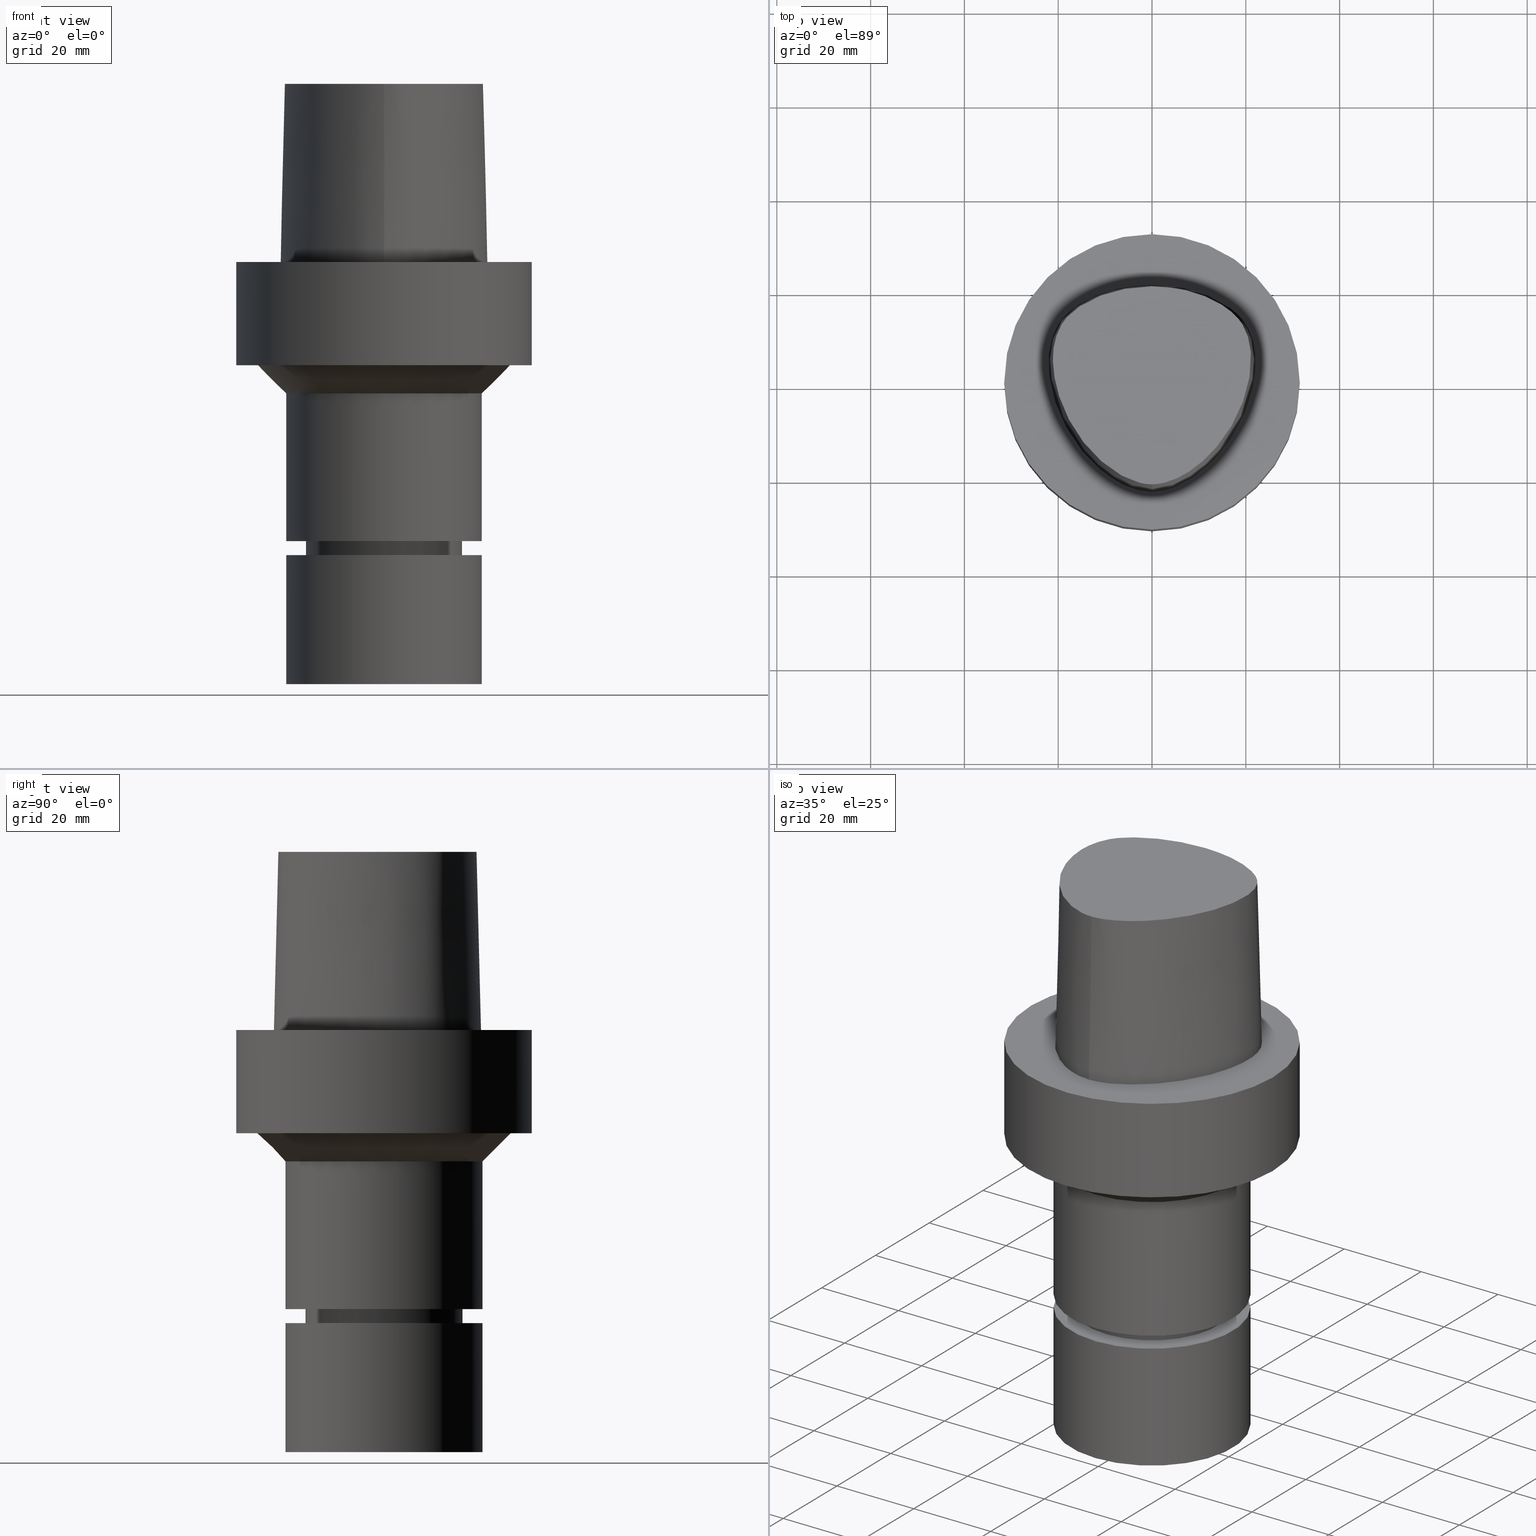
[diagram: canonical four-view strip — front | top / right | iso, engineering-drawing reading convention]
A machine part, canonical four-view strip (front | top / right | iso — engineering-drawing reading convention). The complete STEP part file that produces these views, byte-faithful:
ISO-10303-21;
HEADER;
FILE_DESCRIPTION((''),'1');
FILE_NAME('V:/90_\X2\53D65F9730C730FC30BF\X0\/00_\X2\6DE18DEF30C730FC30BF\X0\/ALL/CAPTO-BKUS\X2\52A05DE556F3\X0\_201801/C6-MEGAER/C6-MEGAER25-90NL.stp','2018-02-01T08:17:54',(''),(''),'Spatial Interop R21 SP3','Kubotek KeyCreator 2011 V10.0.2 (22737)',' ');
FILE_SCHEMA(('automotive_design'));
ENDSEC;
DATA;
#1=MECHANICAL_DESIGN_GEOMETRIC_PRESENTATION_REPRESENTATION(' ',(#14,#15,#16,#17,#18,#19,#20,#21,#22,#23,#24,#25,#26,#27,#28,#29,#30,#31,#32,#33,#34,#35,#36,#37,#38,#39,#40,#41,#42,#43,#44,#45,#46,#47,#48,#49,#50,#51,#52,#53),#10);
#2=PRODUCT_DEFINITION_CONTEXT('',#54,'design');
#3=APPLICATION_PROTOCOL_DEFINITION('INTERNATIONAL STANDARD','automotive_design',1994,#54);
#4=PRODUCT_CATEGORY_RELATIONSHIP('NONE','NONE',#55,#56);
#5=SHAPE_DEFINITION_REPRESENTATION(#57,#58);
#6=PRODUCT_DEFINITION_CONTEXT('',#59,'design');
#7=APPLICATION_PROTOCOL_DEFINITION('INTERNATIONAL STANDARD','automotive_design',1994,#59);
#8=PRODUCT_CATEGORY_RELATIONSHIP('NONE','NONE',#60,#61);
#9=SHAPE_DEFINITION_REPRESENTATION(#62,#63);
#10= (GEOMETRIC_REPRESENTATION_CONTEXT(3)GLOBAL_UNCERTAINTY_ASSIGNED_CONTEXT((#66))GLOBAL_UNIT_ASSIGNED_CONTEXT((#68,#69,#70))REPRESENTATION_CONTEXT('NONE','WORKSPACE'));
#14=STYLED_ITEM('',(#72,#73),#74);
#15=STYLED_ITEM('',(#75),#76);
#16=STYLED_ITEM('',(#77,#78),#79);
#17=STYLED_ITEM('',(#80),#81);
#18=STYLED_ITEM('',(#82,#83),#84);
#19=STYLED_ITEM('',(#85),#86);
#20=STYLED_ITEM('',(#87),#88);
#21=STYLED_ITEM('',(#89),#90);
#22=STYLED_ITEM('',(#91),#92);
#23=STYLED_ITEM('',(#93,#94),#95);
#24=STYLED_ITEM('',(#96,#97),#98);
#25=STYLED_ITEM('',(#99,#100),#101);
#26=STYLED_ITEM('',(#102),#103);
#27=STYLED_ITEM('',(#104,#105),#106);
#28=STYLED_ITEM('',(#107,#108),#109);
#29=STYLED_ITEM('',(#110),#111);
#30=STYLED_ITEM('',(#112),#113);
#31=STYLED_ITEM('',(#114),#115);
#32=STYLED_ITEM('',(#116),#117);
#33=STYLED_ITEM('',(#118,#119),#120);
#34=STYLED_ITEM('',(#121),#122);
#35=STYLED_ITEM('',(#123,#124),#125);
#36=STYLED_ITEM('',(#126),#127);
#37=STYLED_ITEM('',(#128),#129);
#38=STYLED_ITEM('',(#130),#131);
#39=STYLED_ITEM('',(#132,#133),#134);
#40=STYLED_ITEM('',(#135),#136);
#41=STYLED_ITEM('',(#137),#138);
#42=STYLED_ITEM('',(#139,#140),#141);
#43=STYLED_ITEM('',(#142,#143),#144);
#44=STYLED_ITEM('',(#145),#146);
#45=STYLED_ITEM('',(#147,#148),#149);
#46=STYLED_ITEM('',(#150,#151),#152);
#47=STYLED_ITEM('',(#153,#154),#155);
#48=STYLED_ITEM('',(#156,#157),#158);
#49=STYLED_ITEM('',(#159),#160);
#50=STYLED_ITEM('',(#161,#162),#163);
#51=STYLED_ITEM('',(#164,#165),#166);
#52=STYLED_ITEM('',(#167),#168);
#53=STYLED_ITEM('',(#169,#170),#171);
#54=APPLICATION_CONTEXT(' ');
#55=PRODUCT_CATEGORY('part','NONE');
#56=PRODUCT_RELATED_PRODUCT_CATEGORY('detail',' ',(#172));
#57=PRODUCT_DEFINITION_SHAPE('NONE','NONE',#173);
#58=ADVANCED_BREP_SHAPE_REPRESENTATION('Unnamed[1]',(#149,#174),#10);
#59=APPLICATION_CONTEXT(' ');
#60=PRODUCT_CATEGORY('part','NONE');
#61=PRODUCT_RELATED_PRODUCT_CATEGORY('detail',' ',(#175));
#62=PRODUCT_DEFINITION_SHAPE('NONE','NONE',#176);
#63=ADVANCED_BREP_SHAPE_REPRESENTATION('Unnamed[1]',(#134,#177),#10);
#66=UNCERTAINTY_MEASURE_WITH_UNIT(LENGTH_MEASURE(1.0E-006),#68,'','');
#68= (CONVERSION_BASED_UNIT('MILLIMETRE',#180)LENGTH_UNIT()NAMED_UNIT(#183));
#69= (NAMED_UNIT(#185)PLANE_ANGLE_UNIT()SI_UNIT($,.RADIAN.));
#70= (NAMED_UNIT(#185)SOLID_ANGLE_UNIT()SI_UNIT($,.STERADIAN.));
#72=PRESENTATION_STYLE_ASSIGNMENT((#191));
#73=PRESENTATION_STYLE_ASSIGNMENT((#192));
#74=ADVANCED_FACE('Unnamed[1]',(#193,#194),#195,.T.);
#75=PRESENTATION_STYLE_ASSIGNMENT((#196));
#76=EDGE_CURVE('Unnamed[1]',#197,#198,#199,.T.);
#77=PRESENTATION_STYLE_ASSIGNMENT((#200));
#78=PRESENTATION_STYLE_ASSIGNMENT((#201));
#79=ADVANCED_FACE('Unnamed[1]',(#202),#203,.T.);
#80=PRESENTATION_STYLE_ASSIGNMENT((#204));
#81=EDGE_CURVE('Unnamed[1]',#205,#205,#206,.T.);
#82=PRESENTATION_STYLE_ASSIGNMENT((#207));
#83=PRESENTATION_STYLE_ASSIGNMENT((#208));
#84=ADVANCED_FACE('Unnamed[1]',(#209),#210,.T.);
#85=PRESENTATION_STYLE_ASSIGNMENT((#211));
#86=EDGE_CURVE('Unnamed[1]',#212,#212,#213,.T.);
#87=PRESENTATION_STYLE_ASSIGNMENT((#214));
#88=EDGE_CURVE('Unnamed[1]',#215,#215,#216,.T.);
#89=PRESENTATION_STYLE_ASSIGNMENT((#217));
#90=EDGE_CURVE('Unnamed[1]',#218,#219,#220,.T.);
#91=PRESENTATION_STYLE_ASSIGNMENT((#221));
#92=EDGE_CURVE('Unnamed[1]',#222,#222,#223,.T.);
#93=PRESENTATION_STYLE_ASSIGNMENT((#224));
#94=PRESENTATION_STYLE_ASSIGNMENT((#225));
#95=ADVANCED_FACE('Unnamed[1]',(#226),#227,.T.);
#96=PRESENTATION_STYLE_ASSIGNMENT((#228));
#97=PRESENTATION_STYLE_ASSIGNMENT((#229));
#98=ADVANCED_FACE('Unnamed[1]',(#230),#231,.T.);
#99=PRESENTATION_STYLE_ASSIGNMENT((#232));
#100=PRESENTATION_STYLE_ASSIGNMENT((#233));
#101=ADVANCED_FACE('Unnamed[1]',(#234,#235),#236,.T.);
#102=PRESENTATION_STYLE_ASSIGNMENT((#237));
#103=EDGE_CURVE('Unnamed[1]',#198,#238,#239,.T.);
#104=PRESENTATION_STYLE_ASSIGNMENT((#240));
#105=PRESENTATION_STYLE_ASSIGNMENT((#241));
#106=ADVANCED_FACE('Unnamed[1]',(#242),#243,.T.);
#107=PRESENTATION_STYLE_ASSIGNMENT((#244));
#108=PRESENTATION_STYLE_ASSIGNMENT((#245));
#109=ADVANCED_FACE('Unnamed[1]',(#246,#247),#248,.T.);
#110=PRESENTATION_STYLE_ASSIGNMENT((#249));
#111=EDGE_CURVE('Unnamed[1]',#250,#250,#251,.T.);
#112=PRESENTATION_STYLE_ASSIGNMENT((#252));
#113=EDGE_CURVE('Unnamed[1]',#253,#253,#254,.T.);
#114=PRESENTATION_STYLE_ASSIGNMENT((#255));
#115=EDGE_CURVE('Unnamed[1]',#256,#256,#257,.T.);
#116=PRESENTATION_STYLE_ASSIGNMENT((#258));
#117=EDGE_CURVE('Unnamed[1]',#238,#218,#259,.T.);
#118=PRESENTATION_STYLE_ASSIGNMENT((#260));
#119=PRESENTATION_STYLE_ASSIGNMENT((#261));
#120=ADVANCED_FACE('Unnamed[1]',(#262,#263),#264,.T.);
#121=PRESENTATION_STYLE_ASSIGNMENT((#265));
#122=EDGE_CURVE('Unnamed[1]',#266,#266,#267,.T.);
#123=PRESENTATION_STYLE_ASSIGNMENT((#268));
#124=PRESENTATION_STYLE_ASSIGNMENT((#269));
#125=ADVANCED_FACE('Unnamed[1]',(#270,#271),#272,.T.);
#126=PRESENTATION_STYLE_ASSIGNMENT((#273));
#127=EDGE_CURVE('Unnamed[1]',#197,#219,#274,.T.);
#128=PRESENTATION_STYLE_ASSIGNMENT((#275));
#129=EDGE_CURVE('Unnamed[1]',#276,#276,#277,.T.);
#130=PRESENTATION_STYLE_ASSIGNMENT((#278));
#131=EDGE_CURVE('Unnamed[1]',#219,#238,#279,.T.);
#132=PRESENTATION_STYLE_ASSIGNMENT((#280));
#133=PRESENTATION_STYLE_ASSIGNMENT((#281));
#134=MANIFOLD_SOLID_BREP('Unnamed[1]',#282);
#135=PRESENTATION_STYLE_ASSIGNMENT((#283));
#136=EDGE_CURVE('Unnamed[1]',#198,#197,#284,.T.);
#137=PRESENTATION_STYLE_ASSIGNMENT((#285));
#138=EDGE_CURVE('Unnamed[1]',#286,#286,#287,.T.);
#139=PRESENTATION_STYLE_ASSIGNMENT((#288));
#140=PRESENTATION_STYLE_ASSIGNMENT((#289));
#141=ADVANCED_FACE('Unnamed[1]',(#290),#291,.T.);
#142=PRESENTATION_STYLE_ASSIGNMENT((#292));
#143=PRESENTATION_STYLE_ASSIGNMENT((#293));
#144=ADVANCED_FACE('Unnamed[1]',(#294,#295),#296,.T.);
#145=PRESENTATION_STYLE_ASSIGNMENT((#297));
#146=EDGE_CURVE('Unnamed[1]',#298,#298,#299,.T.);
#147=PRESENTATION_STYLE_ASSIGNMENT((#300));
#148=PRESENTATION_STYLE_ASSIGNMENT((#301));
#149=MANIFOLD_SOLID_BREP('Unnamed[1]',#302);
#150=PRESENTATION_STYLE_ASSIGNMENT((#303));
#151=PRESENTATION_STYLE_ASSIGNMENT((#304));
#152=ADVANCED_FACE('Unnamed[1]',(#305,#306),#307,.T.);
#153=PRESENTATION_STYLE_ASSIGNMENT((#308));
#154=PRESENTATION_STYLE_ASSIGNMENT((#309));
#155=ADVANCED_FACE('Unnamed[1]',(#310),#311,.T.);
#156=PRESENTATION_STYLE_ASSIGNMENT((#312));
#157=PRESENTATION_STYLE_ASSIGNMENT((#313));
#158=ADVANCED_FACE('Unnamed[1]',(#314,#315),#316,.T.);
#159=PRESENTATION_STYLE_ASSIGNMENT((#317));
#160=EDGE_CURVE('Unnamed[1]',#198,#218,#318,.T.);
#161=PRESENTATION_STYLE_ASSIGNMENT((#319));
#162=PRESENTATION_STYLE_ASSIGNMENT((#320));
#163=ADVANCED_FACE('Unnamed[1]',(#321,#322),#323,.T.);
#164=PRESENTATION_STYLE_ASSIGNMENT((#324));
#165=PRESENTATION_STYLE_ASSIGNMENT((#325));
#166=ADVANCED_FACE('Unnamed[1]',(#326,#327),#328,.T.);
#167=PRESENTATION_STYLE_ASSIGNMENT((#329));
#168=EDGE_CURVE('Unnamed[1]',#330,#330,#331,.T.);
#169=PRESENTATION_STYLE_ASSIGNMENT((#332));
#170=PRESENTATION_STYLE_ASSIGNMENT((#333));
#171=ADVANCED_FACE('Unnamed[1]',(#334,#335),#336,.T.);
#172=PRODUCT('Unnamed[1]','Unnamed[1]','PART-Unnamed[1]-DESC',(#337));
#173=PRODUCT_DEFINITION('NONE','NONE',#338,#2);
#174=AXIS2_PLACEMENT_3D('',#339,#340,#341);
#175=PRODUCT('Unnamed[1]','Unnamed[1]','PART-Unnamed[1]-DESC',(#342));
#176=PRODUCT_DEFINITION('NONE','NONE',#343,#6);
#177=AXIS2_PLACEMENT_3D('',#344,#345,#346);
#180=LENGTH_MEASURE_WITH_UNIT(LENGTH_MEASURE(1.0),#347);
#183=DIMENSIONAL_EXPONENTS(1.0,0.0,0.0,0.0,0.0,0.0,0.0);
#185=DIMENSIONAL_EXPONENTS(0.0,0.0,0.0,0.0,0.0,0.0,0.0);
#191=SURFACE_STYLE_USAGE(.BOTH.,#348);
#192=CURVE_STYLE('',#349,POSITIVE_LENGTH_MEASURE(1000.0),#350);
#193=FACE_BOUND('',#351,.T.);
#194=FACE_BOUND('',#352,.T.);
#195=CYLINDRICAL_SURFACE('',#353,16.0);
#196=CURVE_STYLE('',#354,POSITIVE_LENGTH_MEASURE(1000.0),#355);
#197=VERTEX_POINT('',#356);
#198=VERTEX_POINT('',#357);
#199=B_SPLINE_CURVE_WITH_KNOTS('',3,(#358,#359,#360,#361,#362,#363,#364,#365,#366,#367,#368,#369,#370,#371,#372,#373),.UNSPECIFIED.,.F.,.F.,(4,1,1,1,1,1,1,1,1,1,1,1,1,4),(6.61513393087476,6.99917207152274,7.48193246986995,7.96289324787093,8.45540287038584,9.10291653679981,9.67129810936083,10.1618749681153,10.6358867802489,11.1080734988593,11.6043706019633,12.09451993853,12.6985979284494,13.2302678617486),.UNSPECIFIED.);
#200=SURFACE_STYLE_USAGE(.BOTH.,#374);
#201=CURVE_STYLE('',#375,POSITIVE_LENGTH_MEASURE(1000.0),#376);
#202=FACE_OUTER_BOUND('',#377,.T.);
#203=B_SPLINE_SURFACE_WITH_KNOTS('',3,3,((#378,#379,#380,#381),(#382,#383,#384,#385),(#386,#387,#388,#389),(#390,#391,#392,#393),(#394,#395,#396,#397),(#398,#399,#400,#401),(#402,#403,#404,#405),(#406,#407,#408,#409),(#410,#411,#412,#413),(#414,#415,#416,#417),(#418,#419,#420,#421),(#422,#423,#424,#425),(#426,#427,#428,#429),(#430,#431,#432,#433),(#434,#435,#436,#437),(#438,#439,#440,#441),(#442,#443,#444,#445),(#446,#447,#448,#449)),.UNSPECIFIED.,.F.,.F.,.F.,(4,1,1,1,1,1,1,1,1,2,1,1,1,1,4),(4,4),(-6.6151339308743,-6.20168806019465,-5.78824218951501,-5.37479631883537,-4.96135044815572,-4.13445870679644,-3.30756696543715,-2.89412109475751,-2.48067522407786,-2.06722935339822,-1.65378348271857,-1.24033761203893,-0.826891741359287,-0.413445870679644,0.0),(-3.8,0.0),.UNSPECIFIED.);
#204=CURVE_STYLE('',#450,POSITIVE_LENGTH_MEASURE(1000.0),#451);
#205=VERTEX_POINT('',#452);
#206=CIRCLE('',#453,14.9000000000006);
#207=SURFACE_STYLE_USAGE(.BOTH.,#454);
#208=CURVE_STYLE('',#455,POSITIVE_LENGTH_MEASURE(1000.0),#456);
#209=FACE_OUTER_BOUND('',#457,.T.);
#210=CONICAL_SURFACE('',#458,1.0,0.0249931148600041);
#211=CURVE_STYLE('',#459,POSITIVE_LENGTH_MEASURE(1000.0),#460);
#212=VERTEX_POINT('',#461);
#213=CIRCLE('',#462,16.7499999999907);
#214=CURVE_STYLE('',#463,POSITIVE_LENGTH_MEASURE(1000.0),#464);
#215=VERTEX_POINT('',#465);
#216=CIRCLE('',#466,16.0);
#217=CURVE_STYLE('',#467,POSITIVE_LENGTH_MEASURE(1000.0),#468);
#218=VERTEX_POINT('',#469);
#219=VERTEX_POINT('',#470);
#220=B_SPLINE_CURVE_WITH_KNOTS('',3,(#471,#472,#473,#474,#475,#476,#477,#478,#479,#480,#481,#482,#483,#484,#485,#486,#487),.UNSPECIFIED.,.F.,.F.,(4,1,1,1,1,1,1,1,1,1,1,1,1,1,4),(-13.2302678617486,-12.816821991069,-12.4033761203893,-11.9899302497097,-11.57648437903,-11.1630385083504,-10.9563155730106,-10.7495926376707,-10.3361467669911,-9.92270089631145,-9.09580915495216,-8.26891741359287,-7.44202567223358,-7.02857980155394,-6.6151339308743),.UNSPECIFIED.);
#221=CURVE_STYLE('',#488,POSITIVE_LENGTH_MEASURE(1000.0),#489);
#222=VERTEX_POINT('',#490);
#223=CIRCLE('',#491,21.0);
#224=SURFACE_STYLE_USAGE(.BOTH.,#492);
#225=CURVE_STYLE('',#493,POSITIVE_LENGTH_MEASURE(1000.0),#494);
#226=FACE_OUTER_BOUND('',#495,.T.);
#227=PLANE('',#496);
#228=SURFACE_STYLE_USAGE(.BOTH.,#497);
#229=CURVE_STYLE('',#498,POSITIVE_LENGTH_MEASURE(1000.0),#499);
#230=FACE_OUTER_BOUND('',#500,.T.);
#231=B_SPLINE_SURFACE_WITH_KNOTS('',3,3,((#501,#502,#503,#504),(#505,#506,#507,#508),(#509,#510,#511,#512),(#513,#514,#515,#516),(#517,#518,#519,#520),(#521,#522,#523,#524),(#525,#526,#527,#528),(#529,#530,#531,#532),(#533,#534,#535,#536),(#537,#538,#539,#540),(#541,#542,#543,#544),(#545,#546,#547,#548),(#549,#550,#551,#552),(#553,#554,#555,#556),(#557,#558,#559,#560),(#561,#562,#563,#564),(#565,#566,#567,#568)),.UNSPECIFIED.,.F.,.F.,.F.,(4,1,1,1,1,1,1,1,1,1,1,1,1,1,4),(4,4),(-13.2302678617486,-12.816821991069,-12.4033761203893,-11.9899302497097,-11.57648437903,-11.1630385083504,-10.9563155730106,-10.7495926376707,-10.3361467669911,-9.92270089631145,-9.09580915495216,-8.26891741359287,-7.44202567223358,-7.02857980155394,-6.6151339308743),(-3.8,0.0),.UNSPECIFIED.);
#232=SURFACE_STYLE_USAGE(.BOTH.,#569);
#233=CURVE_STYLE('',#570,POSITIVE_LENGTH_MEASURE(1000.0),#571);
#234=FACE_BOUND('',#572,.T.);
#235=FACE_BOUND('',#573,.T.);
#236=CYLINDRICAL_SURFACE('',#574,16.7499999999962);
#237=CURVE_STYLE('',#575,POSITIVE_LENGTH_MEASURE(1000.0),#576);
#238=VERTEX_POINT('',#577);
#239=LINE('',#578,#579);
#240=SURFACE_STYLE_USAGE(.BOTH.,#580);
#241=CURVE_STYLE('',#581,POSITIVE_LENGTH_MEASURE(1000.0),#582);
#242=FACE_OUTER_BOUND('',#583,.T.);
#243=PLANE('',#584);
#244=SURFACE_STYLE_USAGE(.BOTH.,#585);
#245=CURVE_STYLE('',#586,POSITIVE_LENGTH_MEASURE(1000.0),#587);
#246=FACE_BOUND('',#588,.T.);
#247=FACE_BOUND('',#589,.T.);
#248=CONICAL_SURFACE('',#590,24.0,0.78539816339745);
#249=CURVE_STYLE('',#591,POSITIVE_LENGTH_MEASURE(1000.0),#592);
#250=VERTEX_POINT('',#593);
#251=CIRCLE('',#594,16.7500000000017);
#252=CURVE_STYLE('',#595,POSITIVE_LENGTH_MEASURE(1000.0),#596);
#253=VERTEX_POINT('',#597);
#254=CIRCLE('',#598,31.5);
#255=CURVE_STYLE('',#599,POSITIVE_LENGTH_MEASURE(1000.0),#600);
#256=VERTEX_POINT('',#601);
#257=CIRCLE('',#602,27.0000000000001);
#258=CURVE_STYLE('',#603,POSITIVE_LENGTH_MEASURE(1000.0),#604);
#259=CIRCLE('',#605,0.949936168436318);
#260=SURFACE_STYLE_USAGE(.BOTH.,#606);
#261=CURVE_STYLE('',#607,POSITIVE_LENGTH_MEASURE(1000.0),#608);
#262=FACE_BOUND('',#609,.T.);
#263=FACE_BOUND('',#610,.T.);
#264=CYLINDRICAL_SURFACE('',#611,21.0000000000001);
#265=CURVE_STYLE('',#612,POSITIVE_LENGTH_MEASURE(1000.0),#613);
#266=VERTEX_POINT('',#614);
#267=CIRCLE('',#615,21.0000000000001);
#268=SURFACE_STYLE_USAGE(.BOTH.,#616);
#269=CURVE_STYLE('',#617,POSITIVE_LENGTH_MEASURE(1000.0),#618);
#270=FACE_BOUND('',#619,.T.);
#271=FACE_OUTER_BOUND('',#620,.T.);
#272=PLANE('',#621);
#273=CURVE_STYLE('',#622,POSITIVE_LENGTH_MEASURE(1000.0),#623);
#274=LINE('',#624,#625);
#275=CURVE_STYLE('',#626,POSITIVE_LENGTH_MEASURE(1000.0),#627);
#276=VERTEX_POINT('',#628);
#277=CIRCLE('',#629,16.0);
#278=CURVE_STYLE('',#630,POSITIVE_LENGTH_MEASURE(1000.0),#631);
#279=B_SPLINE_CURVE_WITH_KNOTS('',3,(#632,#633,#634,#635,#636,#637,#638,#639,#640,#641,#642,#643,#644,#645,#646,#647,#648,#649),.UNSPECIFIED.,.F.,.F.,(4,1,1,1,1,1,1,1,1,2,1,1,1,1,4),(-6.6151339308743,-6.20168806019465,-5.78824218951501,-5.37479631883537,-4.96135044815572,-4.13445870679644,-3.30756696543715,-2.89412109475751,-2.48067522407786,-2.06722935339822,-1.65378348271857,-1.24033761203893,-0.826891741359287,-0.413445870679644,0.0),.UNSPECIFIED.);
#280=SURFACE_STYLE_USAGE(.BOTH.,#650);
#281=CURVE_STYLE('',#651,POSITIVE_LENGTH_MEASURE(1000.0),#652);
#282=CLOSED_SHELL('',(#141,#155,#166));
#283=CURVE_STYLE('',#653,POSITIVE_LENGTH_MEASURE(1000.0),#654);
#284=B_SPLINE_CURVE_WITH_KNOTS('',3,(#655,#656,#657,#658,#659,#660,#661,#662,#663,#664,#665,#666,#667,#668,#669,#670),.UNSPECIFIED.,.F.,.F.,(4,1,1,1,1,1,1,1,1,1,1,1,1,4),(0.0,0.447924670568964,0.9388024242536,1.50591409090711,2.07314340012323,2.72424957442464,3.2253501842849,3.80982102049476,4.34867996267067,4.85900173381144,5.37972031856977,6.03459825488646,6.61113557741484,6.61513393087395),.UNSPECIFIED.);
#285=CURVE_STYLE('',#671,POSITIVE_LENGTH_MEASURE(1000.0),#672);
#286=VERTEX_POINT('',#673);
#287=CIRCLE('',#674,21.0);
#288=SURFACE_STYLE_USAGE(.BOTH.,#675);
#289=CURVE_STYLE('',#676,POSITIVE_LENGTH_MEASURE(1000.0),#677);
#290=FACE_OUTER_BOUND('',#678,.T.);
#291=PLANE('',#679);
#292=SURFACE_STYLE_USAGE(.BOTH.,#680);
#293=CURVE_STYLE('',#681,POSITIVE_LENGTH_MEASURE(1000.0),#682);
#294=FACE_BOUND('',#683,.T.);
#295=FACE_BOUND('',#684,.T.);
#296=CYLINDRICAL_SURFACE('',#685,31.5);
#297=CURVE_STYLE('',#686,POSITIVE_LENGTH_MEASURE(1000.0),#687);
#298=VERTEX_POINT('',#688);
#299=CIRCLE('',#689,21.0);
#300=SURFACE_STYLE_USAGE(.BOTH.,#690);
#301=CURVE_STYLE('',#691,POSITIVE_LENGTH_MEASURE(1000.0),#692);
#302=CLOSED_SHELL('',(#98,#79,#84,#106,#158,#144,#125,#109,#120,#171,#101,#163,#74,#152,#95));
#303=SURFACE_STYLE_USAGE(.BOTH.,#693);
#304=CURVE_STYLE('',#694,POSITIVE_LENGTH_MEASURE(1000.0),#695);
#305=FACE_BOUND('',#696,.T.);
#306=FACE_BOUND('',#697,.T.);
#307=CONICAL_SURFACE('',#698,15.4500000000003,0.523598775598044);
#308=SURFACE_STYLE_USAGE(.BOTH.,#699);
#309=CURVE_STYLE('',#700,POSITIVE_LENGTH_MEASURE(1000.0),#701);
#310=FACE_OUTER_BOUND('',#702,.T.);
#311=PLANE('',#703);
#312=SURFACE_STYLE_USAGE(.BOTH.,#704);
#313=CURVE_STYLE('',#705,POSITIVE_LENGTH_MEASURE(1000.0),#706);
#314=FACE_BOUND('',#707,.T.);
#315=FACE_OUTER_BOUND('',#708,.T.);
#316=PLANE('',#709);
#317=CURVE_STYLE('',#710,POSITIVE_LENGTH_MEASURE(1000.0),#711);
#318=LINE('',#712,#713);
#319=SURFACE_STYLE_USAGE(.BOTH.,#714);
#320=CURVE_STYLE('',#715,POSITIVE_LENGTH_MEASURE(1000.0),#716);
#321=FACE_BOUND('',#717,.T.);
#322=FACE_BOUND('',#718,.T.);
#323=CONICAL_SURFACE('',#719,16.3750000000008,1.04719755120063);
#324=SURFACE_STYLE_USAGE(.BOTH.,#720);
#325=CURVE_STYLE('',#721,POSITIVE_LENGTH_MEASURE(1000.0),#722);
#326=FACE_BOUND('',#723,.T.);
#327=FACE_BOUND('',#724,.T.);
#328=CYLINDRICAL_SURFACE('',#725,21.0);
#329=CURVE_STYLE('',#726,POSITIVE_LENGTH_MEASURE(1000.0),#727);
#330=VERTEX_POINT('',#728);
#331=CIRCLE('',#729,31.5);
#332=SURFACE_STYLE_USAGE(.BOTH.,#730);
#333=CURVE_STYLE('',#731,POSITIVE_LENGTH_MEASURE(1000.0),#732);
#334=FACE_BOUND('',#733,.T.);
#335=FACE_OUTER_BOUND('',#734,.T.);
#336=PLANE('',#735);
#337=PRODUCT_CONTEXT('',#54,'mechanical');
#338=PRODUCT_DEFINITION_FORMATION_WITH_SPECIFIED_SOURCE(' ','NONE',#172,.NOT_KNOWN.);
#339=CARTESIAN_POINT('',(0.0,0.0,0.0));
#340=DIRECTION('',(0.0,0.0,1.0));
#341=DIRECTION('',(1.0,0.0,0.0));
#342=PRODUCT_CONTEXT('',#59,'mechanical');
#343=PRODUCT_DEFINITION_FORMATION_WITH_SPECIFIED_SOURCE(' ','NONE',#175,.NOT_KNOWN.);
#344=CARTESIAN_POINT('',(0.0,0.0,0.0));
#345=DIRECTION('',(0.0,0.0,1.0));
#346=DIRECTION('',(1.0,0.0,0.0));
#347= (NAMED_UNIT(#183)LENGTH_UNIT()SI_UNIT(.MILLI.,.METRE.));
#348=SURFACE_SIDE_STYLE('',(#737));
#349=DRAUGHTING_PRE_DEFINED_CURVE_FONT('continuous');
#350=COLOUR_RGB('',0.0,1.0,0.0);
#351=EDGE_LOOP('',(#738));
#352=EDGE_LOOP('',(#739));
#353=AXIS2_PLACEMENT_3D('',#740,#741,#742);
#354=DRAUGHTING_PRE_DEFINED_CURVE_FONT('continuous');
#355=COLOUR_RGB('',0.0,1.0,0.0);
#356=CARTESIAN_POINT('',(0.038736923393866,-22.5191997536361,38.0));
#357=CARTESIAN_POINT('',(-0.001218547003662,19.7276821925089,38.0));
#358=CARTESIAN_POINT('',(0.038736923394311,-22.519199753636,38.0));
#359=CARTESIAN_POINT('',(1.31742058183662,-22.512662269405,38.0));
#360=CARTESIAN_POINT('',(4.2093773447498,-21.9116226439989,38.0));
#361=CARTESIAN_POINT('',(8.20895504542113,-19.7798683845067,38.0));
#362=CARTESIAN_POINT('',(11.9784633234593,-16.681663904162,38.0));
#363=CARTESIAN_POINT('',(15.5308821579362,-12.5807487594113,38.0));
#364=CARTESIAN_POINT('',(18.4566248438667,-7.64932246015528,38.0));
#365=CARTESIAN_POINT('',(20.4036090752029,-2.27012499825289,38.0));
#366=CARTESIAN_POINT('',(21.2357187429189,2.79891401173156,38.0));
#367=CARTESIAN_POINT('',(21.0811206267748,7.62543090736657,38.0));
#368=CARTESIAN_POINT('',(19.3383577336563,12.2772250726194,38.0));
#369=CARTESIAN_POINT('',(15.5796322014404,15.5799672120682,38.0));
#370=CARTESIAN_POINT('',(10.8392956074438,17.9834601687347,38.0));
#371=CARTESIAN_POINT('',(5.56068045850571,19.4586143858472,38.0));
#372=CARTESIAN_POINT('',(1.77223893711014,19.6418877095654,38.0));
#373=CARTESIAN_POINT('',(-0.001218367817519,19.7276822012873,38.0));
#374=SURFACE_SIDE_STYLE('',(#743));
#375=DRAUGHTING_PRE_DEFINED_CURVE_FONT('continuous');
#376=COLOUR_RGB('',0.0,1.0,0.0);
#377=EDGE_LOOP('',(#744,#745,#746,#747));
#378=CARTESIAN_POINT('',(0.038736923393866,-22.5191997536361,38.0));
#379=CARTESIAN_POINT('',(0.04035580478973,-22.8358410047159,25.3333333333066));
#380=CARTESIAN_POINT('',(0.041974686185626,-23.1524822558133,12.6666666666934));
#381=CARTESIAN_POINT('',(0.04359356758149,-23.4691235068931,7.78075697532443E-032));
#382=CARTESIAN_POINT('',(-1.33786123484754,-22.5261650259856,38.0));
#383=CARTESIAN_POINT('',(-1.38240731367927,-22.8430399310626,25.3333333333066));
#384=CARTESIAN_POINT('',(-1.42695339249092,-23.1599147815484,12.6666666666934));
#385=CARTESIAN_POINT('',(-1.4714994713963,-23.4767895315797,2.46519032881566E-032));
#386=CARTESIAN_POINT('',(-4.08909358431842,-21.9268839879558,38.0));
#387=CARTESIAN_POINT('',(-4.20580731135515,-22.2249725500078,25.3333333333066));
#388=CARTESIAN_POINT('',(-4.32252104640446,-22.5230611651922,12.6666666666934));
#389=CARTESIAN_POINT('',(-4.43923476371401,-22.821149804767,-4.93038065763132E-032));
#390=CARTESIAN_POINT('',(-7.8333083619947,-19.9973514861616,38.0));
#391=CARTESIAN_POINT('',(-8.00568301809614,-20.2649260859405,25.3333333333066));
#392=CARTESIAN_POINT('',(-8.1780576640789,-20.532500564315,12.6666666666934));
#393=CARTESIAN_POINT('',(-8.35043230079961,-20.8000751253325,-9.86076131526265E-032));
#394=CARTESIAN_POINT('',(-11.1035071147626,-17.450554957873,38.0));
#395=CARTESIAN_POINT('',(-11.3173048160562,-17.6855739222454,25.3333333333066));
#396=CARTESIAN_POINT('',(-11.5311025116181,-17.9205928617968,12.6666666666934));
#397=CARTESIAN_POINT('',(-11.744900222602,-18.1556117874078,-1.97215226305253E-031));
#398=CARTESIAN_POINT('',(-14.9379535189057,-13.461132049697,38.0));
#399=CARTESIAN_POINT('',(-15.191622410671,-13.6542981711372,25.3333333333066));
#400=CARTESIAN_POINT('',(-15.4452913389853,-13.8474645327131,12.6666666666934));
#401=CARTESIAN_POINT('',(-15.6989602501314,-14.0406306929147,-1.97215226305253E-031));
#402=CARTESIAN_POINT('',(-18.6681263017223,-7.59391757463204,38.0));
#403=CARTESIAN_POINT('',(-18.9571800800711,-7.73136168081928,25.3333333333066));
#404=CARTESIAN_POINT('',(-19.2462337287194,-7.86880572399774,12.6666666666934));
#405=CARTESIAN_POINT('',(-19.5352875070682,-8.00624990770787,1.97215226305253E-031));
#406=CARTESIAN_POINT('',(-20.7857899858339,-0.952862819790525,38.0));
#407=CARTESIAN_POINT('',(-21.0973808305434,-1.02218087467418,25.3333333333066));
#408=CARTESIAN_POINT('',(-21.408971677436,-1.09149899580772,12.6666666666934));
#409=CARTESIAN_POINT('',(-21.7205626190491,-1.16081708945282,0.0));
#410=CARTESIAN_POINT('',(-21.2911760556836,4.5469215763113,38.0));
#411=CARTESIAN_POINT('',(-21.610337904926,4.54783292082248,25.3333333333066));
#412=CARTESIAN_POINT('',(-21.9294998290918,4.54874426225691,12.6666666666934));
#413=CARTESIAN_POINT('',(-22.2486616783342,4.54965558738736,0.0));
#414=CARTESIAN_POINT('',(-20.7345309521958,8.74909381391006,38.0));
#415=CARTESIAN_POINT('',(-21.0445680426217,8.83349432450556,25.3333333333066));
#416=CARTESIAN_POINT('',(-21.3546050933631,8.91789488065068,12.6666666666934));
#417=CARTESIAN_POINT('',(-21.6646421256468,9.00229539124618,0.0));
#418=CARTESIAN_POINT('',(-19.5531512296439,11.3174844040833,38.0));
#419=CARTESIAN_POINT('',(-19.8336219699984,11.4710077674213,25.3333333333066));
#420=CARTESIAN_POINT('',(-20.1140927680763,11.6245311337623,12.6666666666934));
#421=CARTESIAN_POINT('',(-20.3945635471922,11.7780544971003,0.0));
#422=CARTESIAN_POINT('',(-17.9100913688793,13.524027510437,38.0));
#423=CARTESIAN_POINT('',(-18.1375785458768,13.7487051053655,25.3333333333066));
#424=CARTESIAN_POINT('',(-18.365065665211,13.9733826973296,12.6666666666934));
#425=CARTESIAN_POINT('',(-18.5925528034471,14.1980602922581,0.0));
#426=CARTESIAN_POINT('',(-15.7996349656398,15.3762170634413,38.0));
#427=CARTESIAN_POINT('',(-15.9739761051783,15.6434029846179,25.3333333333066));
#428=CARTESIAN_POINT('',(-16.1483172726872,15.9105889315134,12.6666666666934));
#429=CARTESIAN_POINT('',(-16.3226584122258,16.1777748720707,0.0));
#430=CARTESIAN_POINT('',(-12.1175640002064,17.3825162484012,38.0));
#431=CARTESIAN_POINT('',(-12.2475895903055,17.6724842099619,25.3333333333066));
#432=CARTESIAN_POINT('',(-12.3776152070492,17.9624521925696,12.6666666666934));
#433=CARTESIAN_POINT('',(-12.5076407874579,18.2524201541303,9.86076131526265E-032));
#434=CARTESIAN_POINT('',(-8.21761151654222,18.7588585989994,38.0));
#435=CARTESIAN_POINT('',(-8.30099497910627,19.0656105427881,25.3333333333066));
#436=CARTESIAN_POINT('',(-8.38437843913309,19.3723624535439,12.6666666666934));
#437=CARTESIAN_POINT('',(-8.46776192107786,19.679114377952,9.86076131526265E-032));
#438=CARTESIAN_POINT('',(-4.13466093881225,19.5396850837055,38.0));
#439=CARTESIAN_POINT('',(-4.16658562115465,19.8557172636973,25.3333333333066));
#440=CARTESIAN_POINT('',(-4.19851029939059,20.1717494367229,12.6666666666934));
#441=CARTESIAN_POINT('',(-4.23043497193604,20.487781597334,1.97215226305253E-031));
#442=CARTESIAN_POINT('',(-1.37917220403684,19.6638560588908,38.0));
#443=CARTESIAN_POINT('',(-1.39382511685176,19.98016223565,25.3333333333066));
#444=CARTESIAN_POINT('',(-1.40847802945569,20.296468399885,12.6666666666934));
#445=CARTESIAN_POINT('',(-1.42313094248379,20.6127745766442,1.10933564796705E-031));
#446=CARTESIAN_POINT('',(-0.001218547003662,19.7276821925089,38.0));
#447=CARTESIAN_POINT('',(-0.015869696232855,20.043988446791,25.3333333333066));
#448=CARTESIAN_POINT('',(-0.030520845462092,20.3602947010464,12.6666666666934));
#449=CARTESIAN_POINT('',(-0.045171994691285,20.6766009553285,1.6755590516169E-031));
#450=DRAUGHTING_PRE_DEFINED_CURVE_FONT('continuous');
#451=COLOUR_RGB('',0.0,1.0,0.0);
#452=CARTESIAN_POINT('',(4.88634072859795E-015,14.9000000000007,-79.8000000000002));
#453=AXIS2_PLACEMENT_3D('',#748,#749,#750);
#454=SURFACE_SIDE_STYLE('',(#751));
#455=DRAUGHTING_PRE_DEFINED_CURVE_FONT('continuous');
#456=COLOUR_RGB('',0.0,1.0,0.0);
#457=EDGE_LOOP('',(#752,#753,#754));
#458=AXIS2_PLACEMENT_3D('',#755,#756,#757);
#459=DRAUGHTING_PRE_DEFINED_CURVE_FONT('continuous');
#460=COLOUR_RGB('',0.0,1.0,0.0);
#461=CARTESIAN_POINT('',(3.64332422746333E-015,16.7499999999907,-59.4999999999992));
#462=AXIS2_PLACEMENT_3D('',#758,#759,#760);
#463=DRAUGHTING_PRE_DEFINED_CURVE_FONT('continuous');
#464=COLOUR_RGB('',0.0,1.0,0.0);
#465=CARTESIAN_POINT('',(4.03523187322559E-015,16.0,-65.9003375672901));
#466=AXIS2_PLACEMENT_3D('',#761,#762,#763);
#467=DRAUGHTING_PRE_DEFINED_CURVE_FONT('continuous');
#468=COLOUR_RGB('',0.0,1.0,0.0);
#469=CARTESIAN_POINT('',(0.044682985379347,20.6765087343109,1.61778115328528E-031));
#470=CARTESIAN_POINT('',(0.04359356758149,-23.4691235068931,7.78075697532443E-032));
#471=CARTESIAN_POINT('',(0.044682985379347,20.6765087343109,1.61778115328528E-031));
#472=CARTESIAN_POINT('',(1.42379272427753,20.6097915814392,8.62816615085482E-032));
#473=CARTESIAN_POINT('',(4.2230955003445,20.4837538303966,1.4791141972894E-031));
#474=CARTESIAN_POINT('',(8.47220762821777,19.6890432607088,9.86076131526265E-032));
#475=CARTESIAN_POINT('',(12.5141247708253,18.2434968480404,0.0));
#476=CARTESIAN_POINT('',(16.3038624872874,16.1734192182143,1.97215226305253E-031));
#477=CARTESIAN_POINT('',(19.1446913988473,13.7036723639434,-1.97215226305253E-031));
#478=CARTESIAN_POINT('',(20.7319894342149,11.1014620996188,0.0));
#479=CARTESIAN_POINT('',(21.7831756505763,8.28099229708081,-1.97215226305253E-031));
#480=CARTESIAN_POINT('',(22.2258240701438,4.60865440596506,0.0));
#481=CARTESIAN_POINT('',(21.7436130080666,-1.11326526354485,0.0));
#482=CARTESIAN_POINT('',(19.5519487660502,-7.95432366164584,0.0));
#483=CARTESIAN_POINT('',(14.9574167123838,-15.2089785567293,0.0));
#484=CARTESIAN_POINT('',(9.66840283021945,-20.0827414369705,-9.86076131526265E-032));
#485=CARTESIAN_POINT('',(4.51628650521788,-22.7946374572188,-9.86076131526265E-032));
#486=CARTESIAN_POINT('',(1.55867251738073,-23.4612972770043,-1.23259516440783E-032));
#487=CARTESIAN_POINT('',(0.04359356758149,-23.4691235068931,7.78075697532443E-032));
#488=DRAUGHTING_PRE_DEFINED_CURVE_FONT('continuous');
#489=COLOUR_RGB('',0.0,1.0,0.0);
#490=CARTESIAN_POINT('',(3.82702124733548E-015,21.0,-62.5));
#491=AXIS2_PLACEMENT_3D('',#764,#765,#766);
#492=SURFACE_SIDE_STYLE('',(#767));
#493=DRAUGHTING_PRE_DEFINED_CURVE_FONT('continuous');
#494=COLOUR_RGB('',0.0,1.0,0.0);
#495=EDGE_LOOP('',(#768));
#496=AXIS2_PLACEMENT_3D('',#769,#770,#771);
#497=SURFACE_SIDE_STYLE('',(#772));
#498=DRAUGHTING_PRE_DEFINED_CURVE_FONT('continuous');
#499=COLOUR_RGB('',0.0,1.0,0.0);
#500=EDGE_LOOP('',(#773,#774,#775,#776));
#501=CARTESIAN_POINT('',(-0.001218367817519,19.7276822012873,38.0));
#502=CARTESIAN_POINT('',(0.014082083248157,20.0439577123075,25.3333333333066));
#503=CARTESIAN_POINT('',(0.029382534313671,20.3602332232908,12.6666666666934));
#504=CARTESIAN_POINT('',(0.044682985379347,20.6765087343109,1.61778115328528E-031));
#505=CARTESIAN_POINT('',(1.37788651195108,19.6609652834875,38.0));
#506=CARTESIAN_POINT('',(1.3931885827258,19.9772407169847,25.3333333333066));
#507=CARTESIAN_POINT('',(1.40849065356095,20.2935162254648,12.6666666666934));
#508=CARTESIAN_POINT('',(1.42379272427753,20.6097915814392,8.62816615085482E-032));
#509=CARTESIAN_POINT('',(4.135446440878,19.5347778787784,38.0));
#510=CARTESIAN_POINT('',(4.16466278851883,19.8511031866125,25.3333333333066));
#511=CARTESIAN_POINT('',(4.1938791526746,20.1674284644204,12.6666666666934));
#512=CARTESIAN_POINT('',(4.2230955003445,20.4837538303966,1.4791141972894E-031));
#513=CARTESIAN_POINT('',(8.213607363795,18.7706026638736,38.0));
#514=CARTESIAN_POINT('',(8.29980745008421,19.0767495109635,25.3333333333066));
#515=CARTESIAN_POINT('',(8.38600751285747,19.3828964329996,12.6666666666934));
#516=CARTESIAN_POINT('',(8.47220762821777,19.6890432607088,9.86076131526265E-032));
#517=CARTESIAN_POINT('',(12.1316338645671,17.3698624840857,38.0));
#518=CARTESIAN_POINT('',(12.2591308270381,17.6610739397708,25.3333333333066));
#519=CARTESIAN_POINT('',(12.3866278083543,17.9522853923553,12.6666666666934));
#520=CARTESIAN_POINT('',(12.5141247708253,18.2434968480404,0.0));
#521=CARTESIAN_POINT('',(15.7706546153679,15.3789501349612,38.0));
#522=CARTESIAN_POINT('',(15.9483905900895,15.6437731794811,25.3333333333066));
#523=CARTESIAN_POINT('',(16.1261265513272,15.9085961736944,12.6666666666934));
#524=CARTESIAN_POINT('',(16.3038624872874,16.1734192182143,1.97215226305253E-031));
#525=CARTESIAN_POINT('',(18.4265894256284,13.0570022172893,38.0));
#526=CARTESIAN_POINT('',(18.6659567517146,13.2725589420689,25.3333333333066));
#527=CARTESIAN_POINT('',(18.9053240921419,13.4881156488541,12.6666666666934));
#528=CARTESIAN_POINT('',(19.1446913988473,13.7036723639434,-1.97215226305253E-031));
#529=CARTESIAN_POINT('',(19.8679958653038,10.6923771981998,38.0));
#530=CARTESIAN_POINT('',(20.1559937048299,10.8287388264873,25.3333333333066));
#531=CARTESIAN_POINT('',(20.4439915656177,10.965100461641,12.6666666666934));
#532=CARTESIAN_POINT('',(20.7319894342149,11.1014620996188,0.0));
#533=CARTESIAN_POINT('',(20.8470867582337,8.07149548576131,38.0));
#534=CARTESIAN_POINT('',(21.1591164072431,8.14132775555392,25.3333333333066));
#535=CARTESIAN_POINT('',(21.4711459821861,8.21116003697855,12.6666666666934));
#536=CARTESIAN_POINT('',(21.7831756505763,8.28099229708081,-1.97215226305253E-031));
#537=CARTESIAN_POINT('',(21.2693244256982,4.61157245650171,38.0));
#538=CARTESIAN_POINT('',(21.5881576801997,4.6105997689982,25.3333333333066));
#539=CARTESIAN_POINT('',(21.9069908544037,4.60962709346857,12.6666666666934));
#540=CARTESIAN_POINT('',(22.2258240701438,4.60865440596506,0.0));
#541=CARTESIAN_POINT('',(20.8071610855575,-0.912828649855193,38.0));
#542=CARTESIAN_POINT('',(21.119311671178,-0.979640884839481,25.3333333333066));
#543=CARTESIAN_POINT('',(21.4314624224461,-1.04645306732201,12.6666666666934));
#544=CARTESIAN_POINT('',(21.7436130080666,-1.11326526354485,0.0));
#545=CARTESIAN_POINT('',(18.6841935581315,-7.54428794252837,38.0));
#546=CARTESIAN_POINT('',(18.9734452551861,-7.6809665891091,25.3333333333066));
#547=CARTESIAN_POINT('',(19.2626970689956,-7.81764505382656,12.6666666666934));
#548=CARTESIAN_POINT('',(19.5519487660502,-7.95432366164584,0.0));
#549=CARTESIAN_POINT('',(14.2175552814,-14.5971504342323,38.0));
#550=CARTESIAN_POINT('',(14.4641757465198,-14.8010930946929,25.3333333333066));
#551=CARTESIAN_POINT('',(14.710796247264,-15.0050359737917,12.6666666666934));
#552=CARTESIAN_POINT('',(14.9574167123838,-15.2089785567293,0.0));
#553=CARTESIAN_POINT('',(9.0844808732933,-19.3179298129689,38.0));
#554=CARTESIAN_POINT('',(9.27912152349017,-19.572866915557,25.3333333333066));
#555=CARTESIAN_POINT('',(9.47376218971294,-19.827804295621,12.6666666666934));
#556=CARTESIAN_POINT('',(9.66840283021945,-20.0827414369705,-9.86076131526265E-032));
#557=CARTESIAN_POINT('',(4.17112919194182,-21.8987568152736,38.0));
#558=CARTESIAN_POINT('',(4.28618163483998,-22.1973837173649,25.3333333333066));
#559=CARTESIAN_POINT('',(4.40123406239433,-22.4960105163661,12.6666666666934));
#560=CARTESIAN_POINT('',(4.51628650521788,-22.7946374572188,-9.86076131526265E-032));
#561=CARTESIAN_POINT('',(1.41533654381097,-22.5120888467812,38.0));
#562=CARTESIAN_POINT('',(1.46311520162011,-22.8284916374445,25.3333333333066));
#563=CARTESIAN_POINT('',(1.51089385942236,-23.144894486341,12.6666666666934));
#564=CARTESIAN_POINT('',(1.55867251738073,-23.4612972770043,-1.23259516440783E-032));
#565=CARTESIAN_POINT('',(0.038736923393866,-22.5191997536361,38.0));
#566=CARTESIAN_POINT('',(0.04035580478973,-22.8358410047159,25.3333333333066));
#567=CARTESIAN_POINT('',(0.041974686185626,-23.1524822558133,12.6666666666934));
#568=CARTESIAN_POINT('',(0.04359356758149,-23.4691235068931,7.78075697532443E-032));
#569=SURFACE_SIDE_STYLE('',(#777));
#570=DRAUGHTING_PRE_DEFINED_CURVE_FONT('continuous');
#571=COLOUR_RGB('',0.0,1.0,0.0);
#572=EDGE_LOOP('',(#778));
#573=EDGE_LOOP('',(#779));
#574=AXIS2_PLACEMENT_3D('',#780,#781,#782);
#575=DRAUGHTING_PRE_DEFINED_CURVE_FONT('continuous');
#576=COLOUR_RGB('',0.0,1.0,0.0);
#577=CARTESIAN_POINT('',(-0.045171994691285,20.6766009553285,1.6755590516169E-031));
#578=CARTESIAN_POINT('',(-0.001218547003662,19.7276821925089,38.0));
#579=VECTOR('',#783,38.0118715498723);
#580=SURFACE_SIDE_STYLE('',(#784));
#581=DRAUGHTING_PRE_DEFINED_CURVE_FONT('continuous');
#582=COLOUR_RGB('',0.0,1.0,0.0);
#583=EDGE_LOOP('',(#785,#786));
#584=AXIS2_PLACEMENT_3D('',#787,#788,#789);
#585=SURFACE_SIDE_STYLE('',(#790));
#586=DRAUGHTING_PRE_DEFINED_CURVE_FONT('continuous');
#587=COLOUR_RGB('',0.0,1.0,0.0);
#588=EDGE_LOOP('',(#791));
#589=EDGE_LOOP('',(#792));
#590=AXIS2_PLACEMENT_3D('',#793,#794,#795);
#591=DRAUGHTING_PRE_DEFINED_CURVE_FONT('continuous');
#592=COLOUR_RGB('',0.0,1.0,0.0);
#593=CARTESIAN_POINT('',(4.00871749225766E-015,16.7500000000017,-65.4673248654009));
#594=AXIS2_PLACEMENT_3D('',#796,#797,#798);
#595=DRAUGHTING_PRE_DEFINED_CURVE_FONT('continuous');
#596=COLOUR_RGB('',0.0,1.0,0.0);
#597=CARTESIAN_POINT('',(1.34711147906212E-015,31.5,-22.0000000000006));
#598=AXIS2_PLACEMENT_3D('',#799,#800,#801);
#599=DRAUGHTING_PRE_DEFINED_CURVE_FONT('continuous');
#600=COLOUR_RGB('',0.0,1.0,0.0);
#601=CARTESIAN_POINT('',(1.34711147906212E-015,27.0000000000001,-22.0000000000005));
#602=AXIS2_PLACEMENT_3D('',#802,#803,#804);
#603=DRAUGHTING_PRE_DEFINED_CURVE_FONT('continuous');
#604=COLOUR_RGB('',0.0,1.0,0.0);
#605=AXIS2_PLACEMENT_3D('',#805,#806,#807);
#606=SURFACE_SIDE_STYLE('',(#808));
#607=DRAUGHTING_PRE_DEFINED_CURVE_FONT('continuous');
#608=COLOUR_RGB('',0.0,1.0,0.0);
#609=EDGE_LOOP('',(#809));
#610=EDGE_LOOP('',(#810));
#611=AXIS2_PLACEMENT_3D('',#811,#812,#813);
#612=DRAUGHTING_PRE_DEFINED_CURVE_FONT('continuous');
#613=COLOUR_RGB('',0.0,1.0,0.0);
#614=CARTESIAN_POINT('',(3.64332422746337E-015,21.0000000000001,-59.5));
#615=AXIS2_PLACEMENT_3D('',#814,#815,#816);
#616=SURFACE_SIDE_STYLE('',(#817));
#617=DRAUGHTING_PRE_DEFINED_CURVE_FONT('continuous');
#618=COLOUR_RGB('',0.0,1.0,0.0);
#619=EDGE_LOOP('',(#818));
#620=EDGE_LOOP('',(#819));
#621=AXIS2_PLACEMENT_3D('',#820,#821,#822);
#622=DRAUGHTING_PRE_DEFINED_CURVE_FONT('continuous');
#623=COLOUR_RGB('',0.0,1.0,0.0);
#624=CARTESIAN_POINT('',(0.038736923393866,-22.5191997536361,38.0));
#625=VECTOR('',#823,38.0118715498723);
#626=DRAUGHTING_PRE_DEFINED_CURVE_FONT('continuous');
#627=COLOUR_RGB('',0.0,1.0,0.0);
#628=CARTESIAN_POINT('',(4.76967745233821E-015,16.0,-77.8947441116744));
#629=AXIS2_PLACEMENT_3D('',#824,#825,#826);
#630=DRAUGHTING_PRE_DEFINED_CURVE_FONT('continuous');
#631=COLOUR_RGB('',0.0,1.0,0.0);
#632=CARTESIAN_POINT('',(0.04359356758149,-23.4691235068931,7.78075697532443E-032));
#633=CARTESIAN_POINT('',(-1.4714994713963,-23.4767895315797,2.46519032881566E-032));
#634=CARTESIAN_POINT('',(-4.43923476371401,-22.821149804767,-4.93038065763132E-032));
#635=CARTESIAN_POINT('',(-8.35043230079961,-20.8000751253325,-9.86076131526265E-032));
#636=CARTESIAN_POINT('',(-11.744900222602,-18.1556117874078,-1.97215226305253E-031));
#637=CARTESIAN_POINT('',(-15.6989602501314,-14.0406306929147,-1.97215226305253E-031));
#638=CARTESIAN_POINT('',(-19.5352875070682,-8.00624990770787,1.97215226305253E-031));
#639=CARTESIAN_POINT('',(-21.7205626190491,-1.16081708945282,0.0));
#640=CARTESIAN_POINT('',(-22.2486616783342,4.54965558738736,0.0));
#641=CARTESIAN_POINT('',(-21.6646421256468,9.00229539124618,0.0));
#642=CARTESIAN_POINT('',(-20.3945635471922,11.7780544971003,0.0));
#643=CARTESIAN_POINT('',(-18.5925528034471,14.1980602922581,0.0));
#644=CARTESIAN_POINT('',(-16.3226584122258,16.1777748720707,0.0));
#645=CARTESIAN_POINT('',(-12.5076407874579,18.2524201541303,9.86076131526265E-032));
#646=CARTESIAN_POINT('',(-8.46776192107786,19.679114377952,9.86076131526265E-032));
#647=CARTESIAN_POINT('',(-4.23043497193604,20.487781597334,1.97215226305253E-031));
#648=CARTESIAN_POINT('',(-1.42313094248379,20.6127745766442,1.10933564796705E-031));
#649=CARTESIAN_POINT('',(-0.045171994691285,20.6766009553285,1.6755590516169E-031));
#650=SURFACE_SIDE_STYLE('',(#827));
#651=DRAUGHTING_PRE_DEFINED_CURVE_FONT('continuous');
#652=COLOUR_RGB('',0.0,1.0,0.0);
#653=DRAUGHTING_PRE_DEFINED_CURVE_FONT('continuous');
#654=COLOUR_RGB('',0.0,1.0,0.0);
#655=CARTESIAN_POINT('',(-0.001218547003662,19.7276821925089,38.0));
#656=CARTESIAN_POINT('',(-1.49408492138443,19.6585333605309,38.0));
#657=CARTESIAN_POINT('',(-4.62297391420352,19.513604770166,38.0));
#658=CARTESIAN_POINT('',(-9.56160616752212,18.4291575730197,38.0));
#659=CARTESIAN_POINT('',(-14.5427684976927,16.2697452580488,38.0));
#660=CARTESIAN_POINT('',(-19.4315563551602,12.5302108980807,38.0));
#661=CARTESIAN_POINT('',(-21.306358833612,6.76352894547076,38.0));
#662=CARTESIAN_POINT('',(-21.0724946936277,0.957075236984038,38.0));
#663=CARTESIAN_POINT('',(-19.7876470880144,-4.34628503581652,38.0));
#664=CARTESIAN_POINT('',(-17.5396999600095,-9.33314444653089,38.0));
#665=CARTESIAN_POINT('',(-14.645447733857,-13.7185760345629,38.0));
#666=CARTESIAN_POINT('',(-10.7996726536643,-17.856257282137,38.0));
#667=CARTESIAN_POINT('',(-6.00479510196376,-21.2687382067675,38.0));
#668=CARTESIAN_POINT('',(-1.90747171908525,-22.5250621415864,38.0));
#669=CARTESIAN_POINT('',(0.025424107066464,-22.5192678176378,38.0));
#670=CARTESIAN_POINT('',(0.038736923394311,-22.519199753636,38.0));
#671=DRAUGHTING_PRE_DEFINED_CURVE_FONT('continuous');
#672=COLOUR_RGB('',0.0,1.0,0.0);
#673=CARTESIAN_POINT('',(1.71450551880633E-015,21.0,-28.0000000000005));
#674=AXIS2_PLACEMENT_3D('',#828,#829,#830);
#675=SURFACE_SIDE_STYLE('',(#831));
#676=DRAUGHTING_PRE_DEFINED_CURVE_FONT('continuous');
#677=COLOUR_RGB('',0.0,1.0,0.0);
#678=EDGE_LOOP('',(#832));
#679=AXIS2_PLACEMENT_3D('',#833,#834,#835);
#680=SURFACE_SIDE_STYLE('',(#836));
#681=DRAUGHTING_PRE_DEFINED_CURVE_FONT('continuous');
#682=COLOUR_RGB('',0.0,1.0,0.0);
#683=EDGE_LOOP('',(#837));
#684=EDGE_LOOP('',(#838));
#685=AXIS2_PLACEMENT_3D('',#839,#840,#841);
#686=DRAUGHTING_PRE_DEFINED_CURVE_FONT('continuous');
#687=COLOUR_RGB('',0.0,1.0,0.0);
#688=CARTESIAN_POINT('',(5.51091059616309E-015,21.0,-90.0));
#689=AXIS2_PLACEMENT_3D('',#842,#843,#844);
#690=SURFACE_SIDE_STYLE('',(#845));
#691=DRAUGHTING_PRE_DEFINED_CURVE_FONT('continuous');
#692=COLOUR_RGB('',0.0,1.0,0.0);
#693=SURFACE_SIDE_STYLE('',(#846));
#694=DRAUGHTING_PRE_DEFINED_CURVE_FONT('continuous');
#695=COLOUR_RGB('',0.0,1.0,0.0);
#696=EDGE_LOOP('',(#847));
#697=EDGE_LOOP('',(#848));
#698=AXIS2_PLACEMENT_3D('',#849,#850,#851);
#699=SURFACE_SIDE_STYLE('',(#852));
#700=DRAUGHTING_PRE_DEFINED_CURVE_FONT('continuous');
#701=COLOUR_RGB('',0.0,1.0,0.0);
#702=EDGE_LOOP('',(#853));
#703=AXIS2_PLACEMENT_3D('',#854,#855,#856);
#704=SURFACE_SIDE_STYLE('',(#857));
#705=DRAUGHTING_PRE_DEFINED_CURVE_FONT('continuous');
#706=COLOUR_RGB('',0.0,1.0,0.0);
#707=EDGE_LOOP('',(#858,#859,#860));
#708=EDGE_LOOP('',(#861));
#709=AXIS2_PLACEMENT_3D('',#862,#863,#864);
#710=DRAUGHTING_PRE_DEFINED_CURVE_FONT('continuous');
#711=COLOUR_RGB('',0.0,1.0,0.0);
#712=CARTESIAN_POINT('',(-0.001218547003662,19.7276821925089,38.0));
#713=VECTOR('',#865,38.0118715503078);
#714=SURFACE_SIDE_STYLE('',(#866));
#715=DRAUGHTING_PRE_DEFINED_CURVE_FONT('continuous');
#716=COLOUR_RGB('',0.0,1.0,0.0);
#717=EDGE_LOOP('',(#867));
#718=EDGE_LOOP('',(#868));
#719=AXIS2_PLACEMENT_3D('',#869,#870,#871);
#720=SURFACE_SIDE_STYLE('',(#872));
#721=DRAUGHTING_PRE_DEFINED_CURVE_FONT('continuous');
#722=COLOUR_RGB('',0.0,1.0,0.0);
#723=EDGE_LOOP('',(#873));
#724=EDGE_LOOP('',(#874));
#725=AXIS2_PLACEMENT_3D('',#875,#876,#877);
#726=DRAUGHTING_PRE_DEFINED_CURVE_FONT('continuous');
#727=COLOUR_RGB('',0.0,1.0,0.0);
#728=CARTESIAN_POINT('',(-3.88267476788467E-031,31.5,3.85763741731416E-015));
#729=AXIS2_PLACEMENT_3D('',#878,#879,#880);
#730=SURFACE_SIDE_STYLE('',(#881));
#731=DRAUGHTING_PRE_DEFINED_CURVE_FONT('continuous');
#732=COLOUR_RGB('',0.0,1.0,0.0);
#733=EDGE_LOOP('',(#882));
#734=EDGE_LOOP('',(#883));
#735=AXIS2_PLACEMENT_3D('',#884,#885,#886);
#737=SURFACE_STYLE_FILL_AREA(#887);
#738=ORIENTED_EDGE('',*,*,#129,.F.);
#739=ORIENTED_EDGE('',*,*,#88,.T.);
#740=CARTESIAN_POINT('',(4.4024546627819E-015,8.8049093255638E-015,-71.8975408394822));
#741=DIRECTION('',(6.12323399573676E-017,1.22464679914735E-016,-1.0));
#742=DIRECTION('',(-1.23259516440783E-032,1.0,1.22464679914735E-016));
#743=SURFACE_STYLE_FILL_AREA(#888);
#744=ORIENTED_EDGE('',*,*,#131,.F.);
#745=ORIENTED_EDGE('',*,*,#127,.F.);
#746=ORIENTED_EDGE('',*,*,#136,.F.);
#747=ORIENTED_EDGE('',*,*,#103,.T.);
#748=CARTESIAN_POINT('',(4.88634072859795E-015,9.7726814571959E-015,-79.8000000000002));
#749=DIRECTION('',(6.12323399573677E-017,1.22464679914735E-016,-1.0));
#750=DIRECTION('',(-1.23259516440783E-032,1.0,1.22464679914735E-016));
#751=SURFACE_STYLE_FILL_AREA(#889);
#752=ORIENTED_EDGE('',*,*,#117,.F.);
#753=ORIENTED_EDGE('',*,*,#103,.F.);
#754=ORIENTED_EDGE('',*,*,#160,.T.);
#755=CARTESIAN_POINT('',(-0.001218547003662,19.7276821925089,-2.00268782779425));
#756=DIRECTION('',(2.1678647975542E-051,-3.42380273908985E-049,-1.0));
#757=DIRECTION('',(-0.046269895968506,0.99892897481606,-3.42113882891801E-049));
#758=CARTESIAN_POINT('',(3.64332422746333E-015,7.28664845492665E-015,-59.4999999999992));
#759=DIRECTION('',(6.12323399573677E-017,1.22464679914735E-016,-1.0));
#760=DIRECTION('',(-1.23259516440783E-032,1.0,1.22464679914735E-016));
#761=CARTESIAN_POINT('',(4.03523187322559E-015,8.07046374645118E-015,-65.9003375672901));
#762=DIRECTION('',(6.12323399573676E-017,1.22464679914735E-016,-1.0));
#763=DIRECTION('',(-1.23259516440783E-032,1.0,1.22464679914735E-016));
#764=CARTESIAN_POINT('',(3.82702124733548E-015,7.65404249467096E-015,-62.5));
#765=DIRECTION('',(6.12323399573677E-017,1.22464679914735E-016,-1.0));
#766=DIRECTION('',(-1.23259516440783E-032,1.0,1.22464679914735E-016));
#767=SURFACE_STYLE_FILL_AREA(#890);
#768=ORIENTED_EDGE('',*,*,#81,.T.);
#769=CARTESIAN_POINT('',(4.88634072859794E-015,7.45000000000033,-79.8));
#770=DIRECTION('',(6.12323399573677E-017,-2.75362458396048E-014,-1.0));
#771=DIRECTION('',(1.68128161366956E-030,1.0,-2.75362458396048E-014));
#772=SURFACE_STYLE_FILL_AREA(#891);
#773=ORIENTED_EDGE('',*,*,#90,.F.);
#774=ORIENTED_EDGE('',*,*,#160,.F.);
#775=ORIENTED_EDGE('',*,*,#76,.F.);
#776=ORIENTED_EDGE('',*,*,#127,.T.);
#777=SURFACE_STYLE_FILL_AREA(#892);
#778=ORIENTED_EDGE('',*,*,#111,.F.);
#779=ORIENTED_EDGE('',*,*,#86,.T.);
#780=CARTESIAN_POINT('',(3.82602085986049E-015,7.65204171972099E-015,-62.4836624327001));
#781=DIRECTION('',(6.12323399573677E-017,1.22464679914735E-016,-1.0));
#782=DIRECTION('',(-1.23259516440783E-032,1.0,1.22464679914735E-016));
#783=DIRECTION('',(-0.001156308434589,0.02496374748543,-0.999687688361864));
#784=SURFACE_STYLE_FILL_AREA(#893);
#785=ORIENTED_EDGE('',*,*,#136,.T.);
#786=ORIENTED_EDGE('',*,*,#76,.T.);
#787=CARTESIAN_POINT('',(0.008647668684817,1.77491953635526,38.0));
#788=DIRECTION('',(-0.0,2.95577857036584E-049,1.0));
#789=DIRECTION('',(1.0,0.0,0.0));
#790=SURFACE_STYLE_FILL_AREA(#894);
#791=ORIENTED_EDGE('',*,*,#138,.F.);
#792=ORIENTED_EDGE('',*,*,#115,.T.);
#793=CARTESIAN_POINT('',(1.53080849893423E-015,3.06161699786845E-015,-25.0000000000005));
#794=DIRECTION('',(-6.12323399573677E-017,-1.22464679914735E-016,1.0));
#795=DIRECTION('',(-1.23259516440783E-032,1.0,1.22464679914735E-016));
#796=CARTESIAN_POINT('',(4.00871749225766E-015,8.01743498451531E-015,-65.4673248654009));
#797=DIRECTION('',(6.12323399573676E-017,1.22464679914735E-016,-1.0));
#798=DIRECTION('',(-1.23259516440783E-032,1.0,1.22464679914735E-016));
#799=CARTESIAN_POINT('',(1.34711147906212E-015,2.69422295812425E-015,-22.0000000000006));
#800=DIRECTION('',(6.12323399573677E-017,1.22464679914735E-016,-1.0));
#801=DIRECTION('',(-1.23259516440783E-032,1.0,1.22464679914735E-016));
#802=CARTESIAN_POINT('',(1.34711147906212E-015,2.69422295812424E-015,-22.0000000000005));
#803=DIRECTION('',(6.12323399573677E-017,1.22464679914735E-016,-1.0));
#804=DIRECTION('',(-1.23259516440783E-032,1.0,1.22464679914735E-016));
#805=CARTESIAN_POINT('',(-0.001218547003662,19.7276821925089,1.97178046083078E-015));
#806=DIRECTION('',(6.12323399573677E-017,1.22464679914735E-016,-1.0));
#807=DIRECTION('',(-0.046269895968506,0.998928974816059,1.19500303158668E-016));
#808=SURFACE_STYLE_FILL_AREA(#895);
#809=ORIENTED_EDGE('',*,*,#122,.F.);
#810=ORIENTED_EDGE('',*,*,#138,.T.);
#811=CARTESIAN_POINT('',(2.67891487313485E-015,5.3578297462697E-015,-43.7500000000002));
#812=DIRECTION('',(6.12323399573677E-017,1.22464679914735E-016,-1.0));
#813=DIRECTION('',(-1.23259516440783E-032,1.0,1.22464679914735E-016));
#814=CARTESIAN_POINT('',(3.64332422746337E-015,7.28664845492674E-015,-59.5));
#815=DIRECTION('',(6.12323399573677E-017,1.22464679914735E-016,-1.0));
#816=DIRECTION('',(-1.23259516440783E-032,1.0,1.22464679914735E-016));
#817=SURFACE_STYLE_FILL_AREA(#896);
#818=ORIENTED_EDGE('',*,*,#115,.F.);
#819=ORIENTED_EDGE('',*,*,#113,.T.);
#820=CARTESIAN_POINT('',(1.34711147906212E-015,29.25,-22.0000000000006));
#821=DIRECTION('',(6.12323399573677E-017,-6.19347074906402E-015,-1.0));
#822=DIRECTION('',(3.74413553691931E-031,1.0,-6.19347074906402E-015));
#823=DIRECTION('',(0.000127766510556,-0.024990186342461,-0.999687688361864));
#824=CARTESIAN_POINT('',(4.76967745233821E-015,9.53935490467642E-015,-77.8947441116744));
#825=DIRECTION('',(6.12323399573676E-017,1.22464679914735E-016,-1.0));
#826=DIRECTION('',(-1.23259516440783E-032,1.0,1.22464679914735E-016));
#827=SURFACE_STYLE_FILL_AREA(#897);
#828=CARTESIAN_POINT('',(1.71450551880633E-015,3.42901103761266E-015,-28.0000000000006));
#829=DIRECTION('',(6.12323399573677E-017,1.22464679914735E-016,-1.0));
#830=DIRECTION('',(-1.23259516440783E-032,1.0,1.22464679914735E-016));
#831=SURFACE_STYLE_FILL_AREA(#898);
#832=ORIENTED_EDGE('',*,*,#146,.T.);
#833=CARTESIAN_POINT('',(5.51091059616309E-015,10.5,-90.0));
#834=DIRECTION('',(6.12323399573677E-017,1.22464679914735E-016,-1.0));
#835=DIRECTION('',(-1.23259516440783E-032,1.0,1.22464679914735E-016));
#836=SURFACE_STYLE_FILL_AREA(#899);
#837=ORIENTED_EDGE('',*,*,#113,.F.);
#838=ORIENTED_EDGE('',*,*,#168,.T.);
#839=CARTESIAN_POINT('',(6.73555739531062E-016,1.34711147906212E-015,-11.0000000000003));
#840=DIRECTION('',(6.12323399573677E-017,1.22464679914735E-016,-1.0));
#841=DIRECTION('',(-1.23259516440783E-032,1.0,1.22464679914735E-016));
#842=CARTESIAN_POINT('',(5.51091059616309E-015,1.10218211923262E-014,-90.0));
#843=DIRECTION('',(6.12323399573677E-017,1.22464679914735E-016,-1.0));
#844=DIRECTION('',(-1.23259516440783E-032,1.0,1.22464679914735E-016));
#845=SURFACE_STYLE_FILL_AREA(#900);
#846=SURFACE_STYLE_FILL_AREA(#901);
#847=ORIENTED_EDGE('',*,*,#81,.F.);
#848=ORIENTED_EDGE('',*,*,#129,.T.);
#849=CARTESIAN_POINT('',(4.82800909046808E-015,9.65601818093616E-015,-78.8473720558373));
#850=DIRECTION('',(-6.12323399573677E-017,-1.22464679914735E-016,1.0));
#851=DIRECTION('',(-1.23259516440783E-032,1.0,1.22464679914735E-016));
#852=SURFACE_STYLE_FILL_AREA(#902);
#853=ORIENTED_EDGE('',*,*,#92,.F.);
#854=CARTESIAN_POINT('',(3.82702124733548E-015,10.5,-62.5));
#855=DIRECTION('',(-6.12323399573677E-017,-1.22464679914735E-016,1.0));
#856=DIRECTION('',(1.23259516440783E-032,-1.0,-1.22464679914735E-016));
#857=SURFACE_STYLE_FILL_AREA(#903);
#858=ORIENTED_EDGE('',*,*,#90,.T.);
#859=ORIENTED_EDGE('',*,*,#131,.T.);
#860=ORIENTED_EDGE('',*,*,#117,.T.);
#861=ORIENTED_EDGE('',*,*,#168,.F.);
#862=CARTESIAN_POINT('',(-1.94133738394233E-031,15.75,1.92881870865708E-015));
#863=DIRECTION('',(-6.12323399573677E-017,-1.22464679914735E-016,1.0));
#864=DIRECTION('',(1.23259516440783E-032,-1.0,-1.22464679914735E-016));
#865=DIRECTION('',(0.001207557810519,0.024961321374199,-0.999687688350411));
#866=SURFACE_STYLE_FILL_AREA(#904);
#867=ORIENTED_EDGE('',*,*,#88,.F.);
#868=ORIENTED_EDGE('',*,*,#111,.T.);
#869=CARTESIAN_POINT('',(4.02197468274163E-015,8.04394936548325E-015,-65.6838312163455));
#870=DIRECTION('',(-6.12323399573676E-017,-1.22464679914735E-016,1.0));
#871=DIRECTION('',(-1.23259516440783E-032,1.0,1.22464679914735E-016));
#872=SURFACE_STYLE_FILL_AREA(#905);
#873=ORIENTED_EDGE('',*,*,#146,.F.);
#874=ORIENTED_EDGE('',*,*,#92,.T.);
#875=CARTESIAN_POINT('',(4.66896592174928E-015,9.33793184349857E-015,-76.25));
#876=DIRECTION('',(6.12323399573677E-017,1.22464679914735E-016,-1.0));
#877=DIRECTION('',(-1.23259516440783E-032,1.0,1.22464679914735E-016));
#878=CARTESIAN_POINT('',(0.0,0.0,0.0));
#879=DIRECTION('',(6.12323399573677E-017,1.22464679914735E-016,-1.0));
#880=DIRECTION('',(-1.23259516440783E-032,1.0,1.22464679914735E-016));
#881=SURFACE_STYLE_FILL_AREA(#906);
#882=ORIENTED_EDGE('',*,*,#86,.F.);
#883=ORIENTED_EDGE('',*,*,#122,.T.);
#884=CARTESIAN_POINT('',(3.64332422746335E-015,18.8749999999954,-59.4999999999996));
#885=DIRECTION('',(6.12323399573677E-017,-1.72079657162742E-013,-1.0));
#886=DIRECTION('',(1.05320129144056E-029,1.0,-1.72079657162742E-013));
#887=FILL_AREA_STYLE('',(#907));
#888=FILL_AREA_STYLE('',(#908));
#889=FILL_AREA_STYLE('',(#909));
#890=FILL_AREA_STYLE('',(#910));
#891=FILL_AREA_STYLE('',(#911));
#892=FILL_AREA_STYLE('',(#912));
#893=FILL_AREA_STYLE('',(#913));
#894=FILL_AREA_STYLE('',(#914));
#895=FILL_AREA_STYLE('',(#915));
#896=FILL_AREA_STYLE('',(#916));
#897=FILL_AREA_STYLE('',(#917));
#898=FILL_AREA_STYLE('',(#918));
#899=FILL_AREA_STYLE('',(#919));
#900=FILL_AREA_STYLE('',(#920));
#901=FILL_AREA_STYLE('',(#921));
#902=FILL_AREA_STYLE('',(#922));
#903=FILL_AREA_STYLE('',(#923));
#904=FILL_AREA_STYLE('',(#924));
#905=FILL_AREA_STYLE('',(#925));
#906=FILL_AREA_STYLE('',(#926));
#907=FILL_AREA_STYLE_COLOUR('',#927);
#908=FILL_AREA_STYLE_COLOUR('',#928);
#909=FILL_AREA_STYLE_COLOUR('',#929);
#910=FILL_AREA_STYLE_COLOUR('',#930);
#911=FILL_AREA_STYLE_COLOUR('',#931);
#912=FILL_AREA_STYLE_COLOUR('',#932);
#913=FILL_AREA_STYLE_COLOUR('',#933);
#914=FILL_AREA_STYLE_COLOUR('',#934);
#915=FILL_AREA_STYLE_COLOUR('',#935);
#916=FILL_AREA_STYLE_COLOUR('',#936);
#917=FILL_AREA_STYLE_COLOUR('',#937);
#918=FILL_AREA_STYLE_COLOUR('',#938);
#919=FILL_AREA_STYLE_COLOUR('',#939);
#920=FILL_AREA_STYLE_COLOUR('',#940);
#921=FILL_AREA_STYLE_COLOUR('',#941);
#922=FILL_AREA_STYLE_COLOUR('',#942);
#923=FILL_AREA_STYLE_COLOUR('',#943);
#924=FILL_AREA_STYLE_COLOUR('',#944);
#925=FILL_AREA_STYLE_COLOUR('',#945);
#926=FILL_AREA_STYLE_COLOUR('',#946);
#927=COLOUR_RGB('',0.0,1.0,0.0);
#928=COLOUR_RGB('',0.0,1.0,0.0);
#929=COLOUR_RGB('',0.0,1.0,0.0);
#930=COLOUR_RGB('',0.0,1.0,0.0);
#931=COLOUR_RGB('',0.0,1.0,0.0);
#932=COLOUR_RGB('',0.0,1.0,0.0);
#933=COLOUR_RGB('',0.0,1.0,0.0);
#934=COLOUR_RGB('',0.0,1.0,0.0);
#935=COLOUR_RGB('',0.0,1.0,0.0);
#936=COLOUR_RGB('',0.0,1.0,0.0);
#937=COLOUR_RGB('',0.0,1.0,0.0);
#938=COLOUR_RGB('',0.0,1.0,0.0);
#939=COLOUR_RGB('',0.0,1.0,0.0);
#940=COLOUR_RGB('',0.0,1.0,0.0);
#941=COLOUR_RGB('',0.0,1.0,0.0);
#942=COLOUR_RGB('',0.0,1.0,0.0);
#943=COLOUR_RGB('',0.0,1.0,0.0);
#944=COLOUR_RGB('',0.0,1.0,0.0);
#945=COLOUR_RGB('',0.0,1.0,0.0);
#946=COLOUR_RGB('',0.0,1.0,0.0);
ENDSEC;
END-ISO-10303-21;
